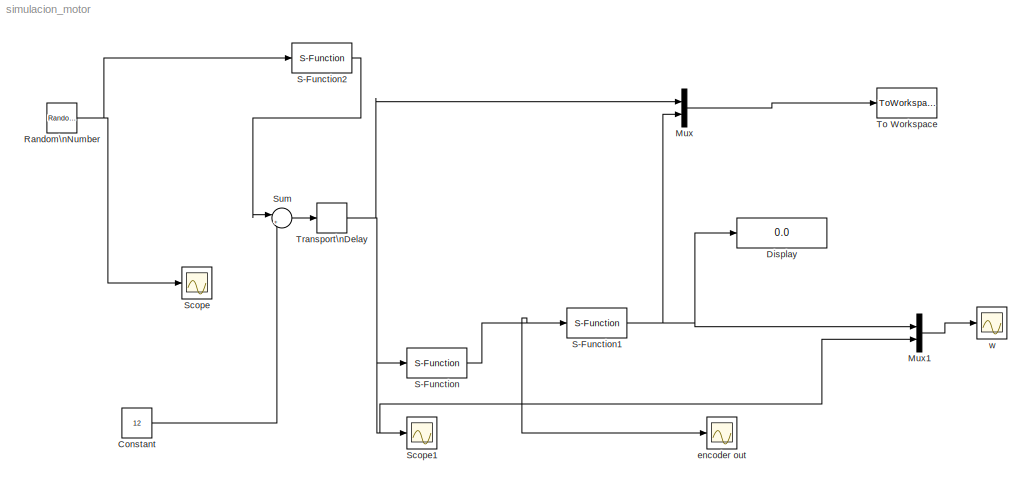
MODEL simulacion_motor
KIND model
BLOCK [Constant] Constant
  SID = 17
  Value = 12
BLOCK [Display] Display
  Decimation = 1
  Ports = [1]
  SID = 32
BLOCK [Mux] Mux
  DisplayOption = bar
  Inputs = 2
  Ports = [2, 1]
  SID = 20
BLOCK [Mux] Mux1
  DisplayOption = bar
  Inputs = 2
  Ports = [2, 1]
  SID = 29
BLOCK [RandomNumber] Random\nNumber
  SID = 10
  SampleTime = 0.00001
BLOCK [S-Function] S-Function
  EnableBusSupport = off
  FunctionName = dcmotor_qenc
  Parameters = 1
  Ports = [1, 1]
  SFunctionDeploymentMode = off
  SID = 3
BLOCK [S-Function] S-Function1
  EnableBusSupport = off
  FunctionName = velocidadEncoder
  Parameters = 1 0.0001
  Ports = [1, 1]
  SFunctionDeploymentMode = off
  SID = 8
BLOCK [S-Function] S-Function2
  EnableBusSupport = off
  FunctionName = mysigno
  Ports = [1, 1]
  SFunctionDeploymentMode = off
  SID = 13
BLOCK [Scope] Scope
  Ports = [1]
  SID = 14
  ScopeSpecificationString = Simulink.scopes.TimeScopeBlockCfg('CurrentConfiguration', extmgr.ConfigurationSet(extmgr.Configuration('Core','General UI',true),extmgr.Configuration('Core','Source UI',true),extmgr.Configuration('Sources','WiredSimulink',true,'DataLoggingVariableName','ScopeData1'),extmgr.Configuration('Visuals','Time Domain',true,'SerializedDisplays',{struct('MinYLimReal','-6.13961','MaxYLimReal','5.33268','YLab...<+1372ch>
BLOCK [Scope] Scope1
  Ports = [1]
  SID = 15
  ScopeSpecificationString = Simulink.scopes.TimeScopeBlockCfg('CurrentConfiguration', extmgr.ConfigurationSet(extmgr.Configuration('Core','General UI',true),extmgr.Configuration('Core','Source UI',true),extmgr.Configuration('Sources','WiredSimulink',true,'DataLoggingVariableName','ScopeData2'),extmgr.Configuration('Visuals','Time Domain',true,'SerializedDisplays',{struct('MinYLimReal','10.51176','MaxYLimReal','13.11226','YLa...<+1453ch>
BLOCK [Sum] Sum
  IconShape = round
  InputSameDT = off
  Inputs = |++
  OutDataTypeStr = Inherit: Inherit via internal rule
  Ports = [2, 1]
  SID = 18
  SaturateOnIntegerOverflow = off
BLOCK [ToWorkspace] To Workspace
  FixptAsFi = on
  MaxDataPoints = inf
  Ports = [1]
  SID = 19
  SampleTime = -1
  Save2DSignal = 3-D array (concatenate along third dimension)
  SaveFormat = Timeseries
  VariableName = datos
BLOCK [TransportDelay] Transport\nDelay
  DelayTime = 0.5
  Ports = [1, 1]
  SID = 31
BLOCK [Scope] encoder out
  Ports = [1]
  SID = 6
  ScopeSpecificationString = Simulink.scopes.TimeScopeBlockCfg('CurrentConfiguration', extmgr.ConfigurationSet(extmgr.Configuration('Core','General UI',true),extmgr.Configuration('Core','Source UI',true),extmgr.Configuration('Sources','WiredSimulink',true,'DataLoggingVariableName','ScopeData1','DataLoggingSaveFormat','StructureWithTime','DataLoggingLimitDataPoints',true,'DataLoggingDecimation','1','DataLoggingDecimateData',tr...<+1686ch>
BLOCK [Scope] w
  Ports = [1]
  SID = 7
  ScopeSpecificationString = Simulink.scopes.TimeScopeBlockCfg('CurrentConfiguration', extmgr.ConfigurationSet(extmgr.Configuration('Core','General UI',true),extmgr.Configuration('Core','Source UI',true),extmgr.Configuration('Sources','WiredSimulink',true,'DataLoggingSaveFormat','StructureWithTime','DataLoggingLimitDataPoints',true,'DataLoggingDecimation','1','DataLoggingDecimateData',true),extmgr.Configuration('Visuals','Tim...<+1709ch>
LINE Constant:1 -> Sum:2
LINE Mux1:1 -> w:1
LINE Mux:1 -> To Workspace:1
NET Random\nNumber:1 -> S-Function2:1, Scope:1
NET S-Function1:1 -> Display:1, Mux1:1, Mux:2
LINE S-Function2:1 -> Sum:1
NET S-Function:1 -> S-Function1:1, encoder out:1
LINE Sum:1 -> Transport\nDelay:1
NET Transport\nDelay:1 -> Mux1:2, Mux:1, S-Function:1, Scope1:1
note: NET lines group one-source signal fan-out (src -> all destinations, sorted); 1:1 wires keep LINE
